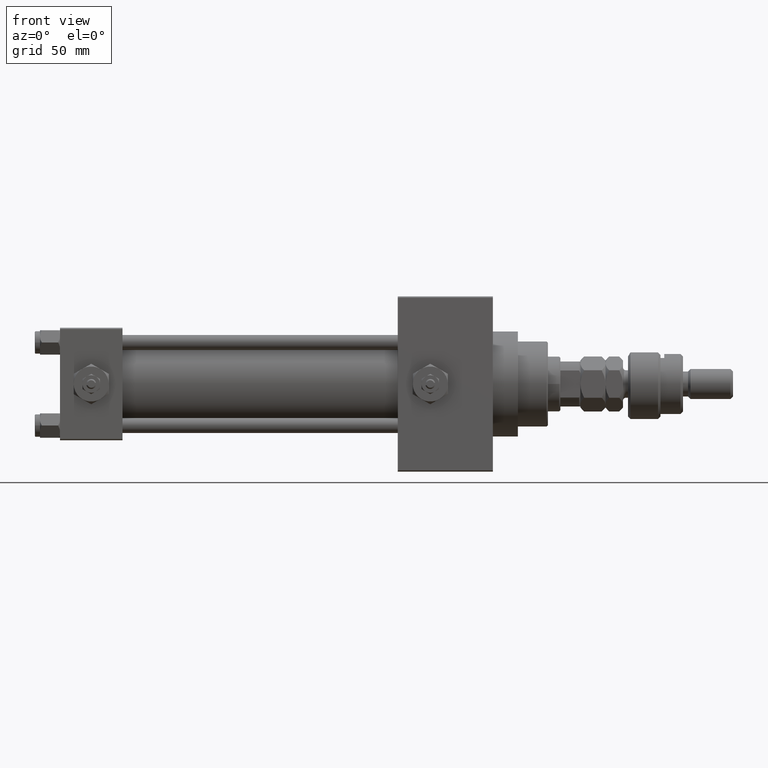
[diagram: clean part render]
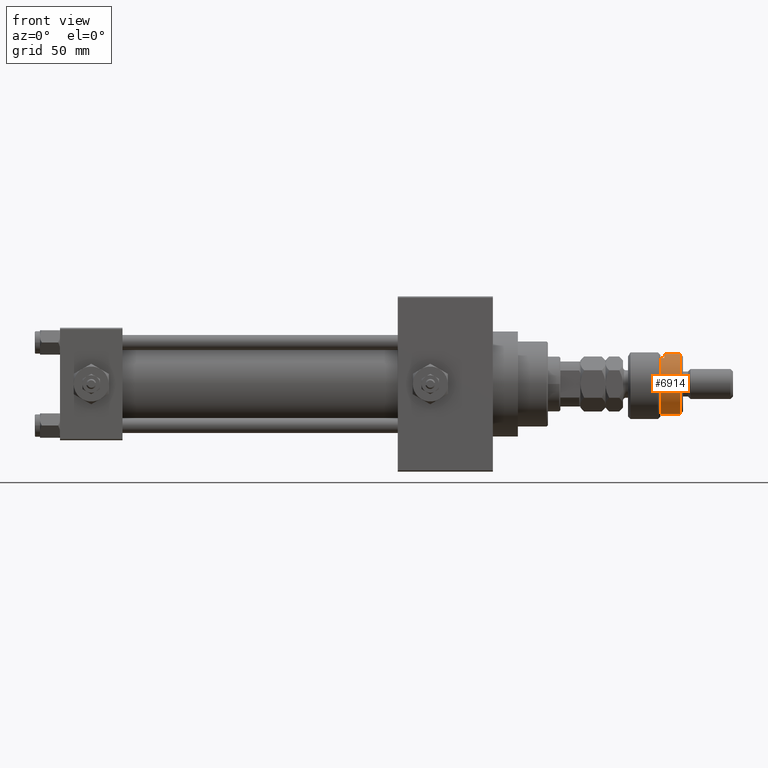
[diagram: same view with one face highlighted and labeled with its STEP entity id]
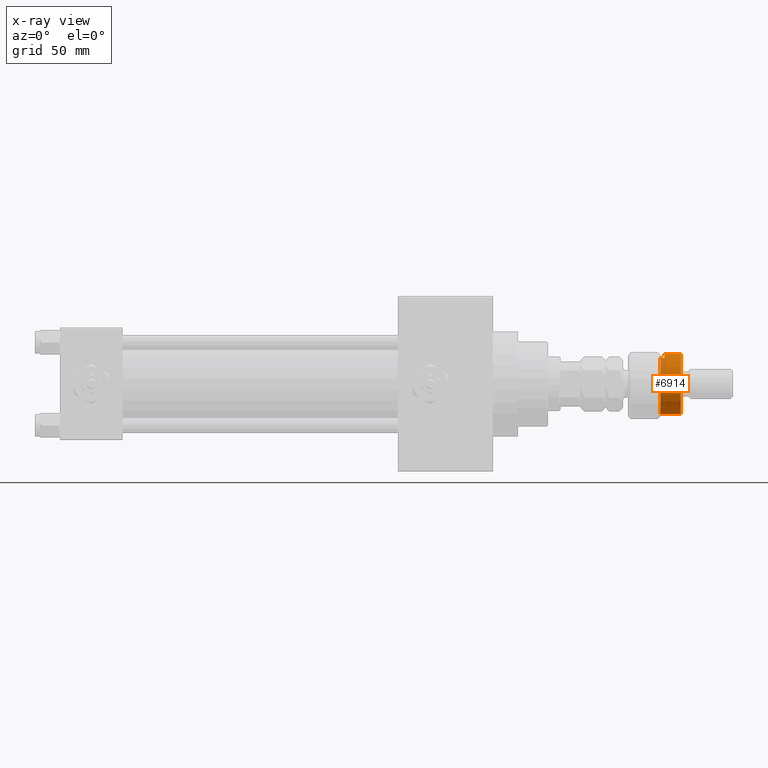
[diagram: x-ray of the same camera — body ghosted, the highlighted face saturated]
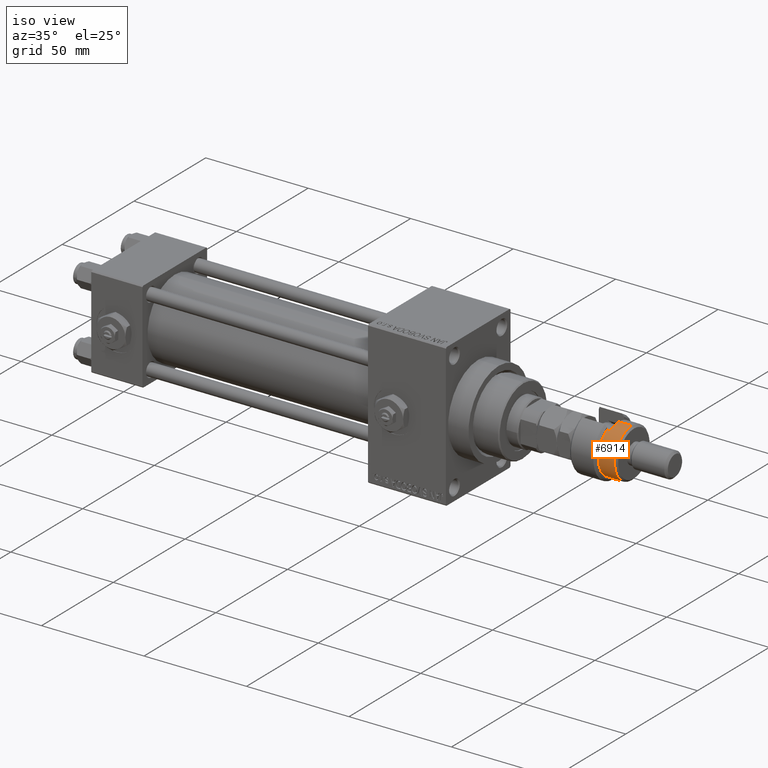
[diagram: same view with one face highlighted and labeled with its STEP entity id]
A machine part, front view. The second image highlights one B-rep face of the part: STEP entity #6914.
The next image is the same camera in x-ray: the body ghosted, the highlighted face saturated — about 0% of this face is hidden behind the body in this view.
A second angle (iso view) of the same face is appended — the face is thin or edge-on in the first view.
In plain terms, the highlighted cylindrical surface (edge-blend (fillet) strip) has radius 12 mm, axis along (-1, -0, 0).
Its self-contained STEP definition (entity closure, byte-faithful):
#537 = VECTOR ( 'NONE', #51042, 1000.000000000000000 ) ;
#1181 = CARTESIAN_POINT ( 'NONE',  ( -12.00000000000000178, 0.000000000000000000, 14.50000000000000000 ) ) ;
#3454 = EDGE_CURVE ( 'NONE', #51299, #25077, #47359, .T. ) ;
#4222 = CIRCLE ( 'NONE', #25155, 12.00000000000000178 ) ;
#4612 = CARTESIAN_POINT ( 'NONE',  ( -10.39230484541326760, -6.000000000000000000, 13.00000000000000000 ) ) ;
#5347 = FACE_OUTER_BOUND ( 'NONE', #14358, .T. ) ;
#5665 = VECTOR ( 'NONE', #7669, 1000.000000000000000 ) ;
#5740 = AXIS2_PLACEMENT_3D ( 'NONE', #42808, #6831, #38859 ) ;
#5785 = DIRECTION ( 'NONE',  ( 0.000000000000000000, 0.000000000000000000, -1.000000000000000000 ) ) ;
#6402 = VERTEX_POINT ( 'NONE', #45692 ) ;
#6831 = DIRECTION ( 'NONE',  ( 0.000000000000000000, 0.000000000000000000, 1.000000000000000000 ) ) ;
#6914 = ADVANCED_FACE ( 'NONE', ( #5347 ), #25552, .T. ) ;
#7669 = DIRECTION ( 'NONE',  ( -0.000000000000000000, -0.000000000000000000, -1.000000000000000000 ) ) ;
#8325 = ORIENTED_EDGE ( 'NONE', *, *, #34439, .T. ) ;
#9984 = CARTESIAN_POINT ( 'NONE',  ( 0.000000000000000000, 0.000000000000000000, 20.99999999999998224 ) ) ;
#11836 = CARTESIAN_POINT ( 'NONE',  ( -12.00000000000000178, 0.000000000000000000, 20.99999999999998224 ) ) ;
#11861 = CARTESIAN_POINT ( 'NONE',  ( 12.00000000000000178, 1.469576158976824144E-15, 22.00000000000000000 ) ) ;
#12289 = DIRECTION ( 'NONE',  ( -0.000000000000000000, -0.000000000000000000, -1.000000000000000000 ) ) ;
#14358 = EDGE_LOOP ( 'NONE', ( #49263, #8325, #27535, #22182, #20944, #19847 ) ) ;
#15075 = CARTESIAN_POINT ( 'NONE',  ( 0.000000000000000000, 0.000000000000000000, 14.50000000000000000 ) ) ;
#17194 = CARTESIAN_POINT ( 'NONE',  ( 12.00000000000000178, 1.469576158976824144E-15, 20.99999999999998224 ) ) ;
#18420 = VECTOR ( 'NONE', #12289, 1000.000000000000000 ) ;
#18632 = DIRECTION ( 'NONE',  ( 1.000000000000000000, 0.000000000000000000, 0.000000000000000000 ) ) ;
#18771 = AXIS2_PLACEMENT_3D ( 'NONE', #37880, #29506, #37618 ) ;
#19509 = CARTESIAN_POINT ( 'NONE',  ( -12.00000000000000178, 0.000000000000000000, 22.00000000000000000 ) ) ;
#19847 = ORIENTED_EDGE ( 'NONE', *, *, #31489, .T. ) ;
#20857 = CIRCLE ( 'NONE', #5740, 12.00000000000000178 ) ;
#20944 = ORIENTED_EDGE ( 'NONE', *, *, #25679, .T. ) ;
#21696 = AXIS2_PLACEMENT_3D ( 'NONE', #15075, #35026, #30853 ) ;
#22182 = ORIENTED_EDGE ( 'NONE', *, *, #32224, .F. ) ;
#25077 = VERTEX_POINT ( 'NONE', #1181 ) ;
#25155 = AXIS2_PLACEMENT_3D ( 'NONE', #9984, #5785, #18632 ) ;
#25552 = CYLINDRICAL_SURFACE ( 'NONE', #18771, 12.00000000000000178 ) ;
#25679 = EDGE_CURVE ( 'NONE', #34825, #42061, #33274, .T. ) ;
#27535 = ORIENTED_EDGE ( 'NONE', *, *, #3454, .T. ) ;
#27587 = CIRCLE ( 'NONE', #21696, 12.00000000000000178 ) ;
#29506 = DIRECTION ( 'NONE',  ( -0.000000000000000000, -0.000000000000000000, -1.000000000000000000 ) ) ;
#30375 = EDGE_CURVE ( 'NONE', #31028, #6402, #40205, .T. ) ;
#30853 = DIRECTION ( 'NONE',  ( -1.000000000000000000, 0.000000000000000000, 0.000000000000000000 ) ) ;
#31028 = VERTEX_POINT ( 'NONE', #17194 ) ;
#31489 = EDGE_CURVE ( 'NONE', #42061, #6402, #20857, .T. ) ;
#32224 = EDGE_CURVE ( 'NONE', #34825, #25077, #27587, .T. ) ;
#33274 = LINE ( 'NONE', #41163, #18420 ) ;
#34439 = EDGE_CURVE ( 'NONE', #31028, #51299, #4222, .T. ) ;
#34825 = VERTEX_POINT ( 'NONE', #46683 ) ;
#35026 = DIRECTION ( 'NONE',  ( 0.000000000000000000, 0.000000000000000000, -1.000000000000000000 ) ) ;
#37618 = DIRECTION ( 'NONE',  ( -1.000000000000000000, 0.000000000000000000, 0.000000000000000000 ) ) ;
#37880 = CARTESIAN_POINT ( 'NONE',  ( 0.000000000000000000, 0.000000000000000000, 22.00000000000000000 ) ) ;
#38859 = DIRECTION ( 'NONE',  ( 1.000000000000000000, 0.000000000000000000, 0.000000000000000000 ) ) ;
#40205 = LINE ( 'NONE', #11861, #5665 ) ;
#41163 = CARTESIAN_POINT ( 'NONE',  ( -10.39230484541326760, -6.000000000000000000, 22.00000000000000000 ) ) ;
#42061 = VERTEX_POINT ( 'NONE', #4612 ) ;
#42808 = CARTESIAN_POINT ( 'NONE',  ( 0.000000000000000000, 0.000000000000000000, 13.00000000000000000 ) ) ;
#45692 = CARTESIAN_POINT ( 'NONE',  ( 12.00000000000000178, 1.469576158976824144E-15, 13.00000000000000000 ) ) ;
#46683 = CARTESIAN_POINT ( 'NONE',  ( -10.39230484541326582, -5.999999999999998224, 14.50000000000000000 ) ) ;
#47359 = LINE ( 'NONE', #19509, #537 ) ;
#49263 = ORIENTED_EDGE ( 'NONE', *, *, #30375, .F. ) ;
#51042 = DIRECTION ( 'NONE',  ( -0.000000000000000000, -0.000000000000000000, -1.000000000000000000 ) ) ;
#51299 = VERTEX_POINT ( 'NONE', #11836 ) ;